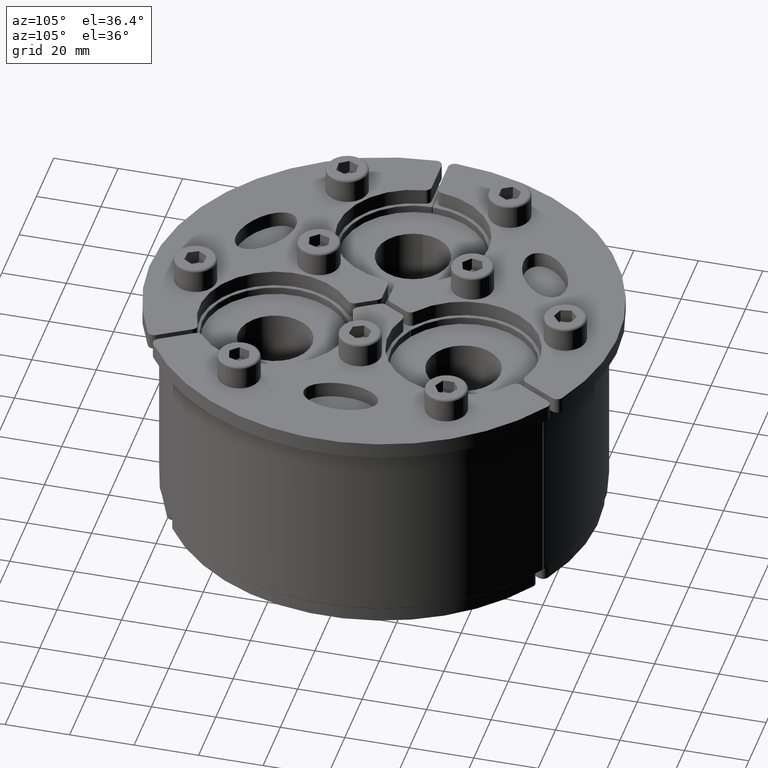
[diagram: clean part render]
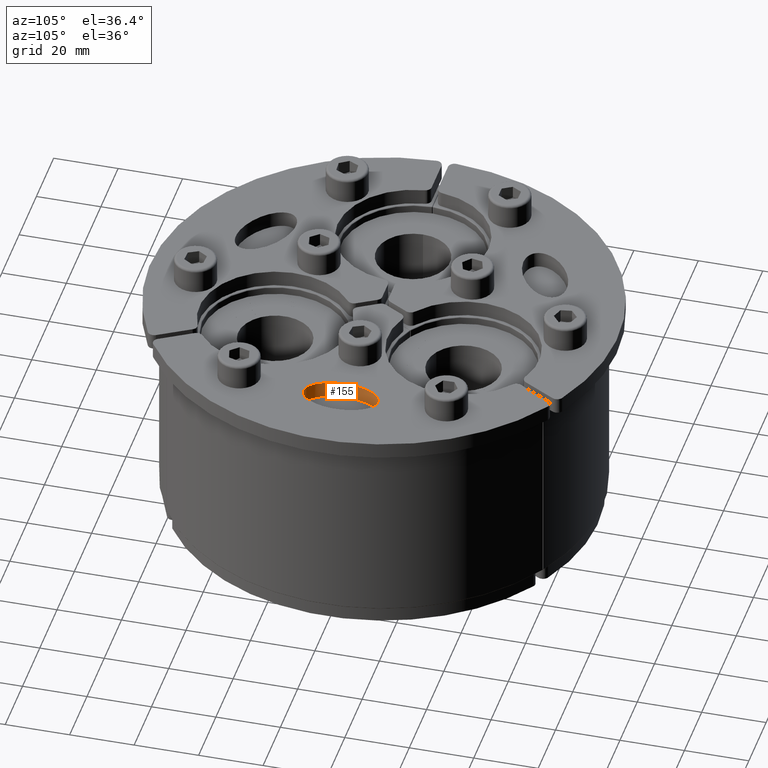
[diagram: same view with one face highlighted and labeled with its STEP entity id]
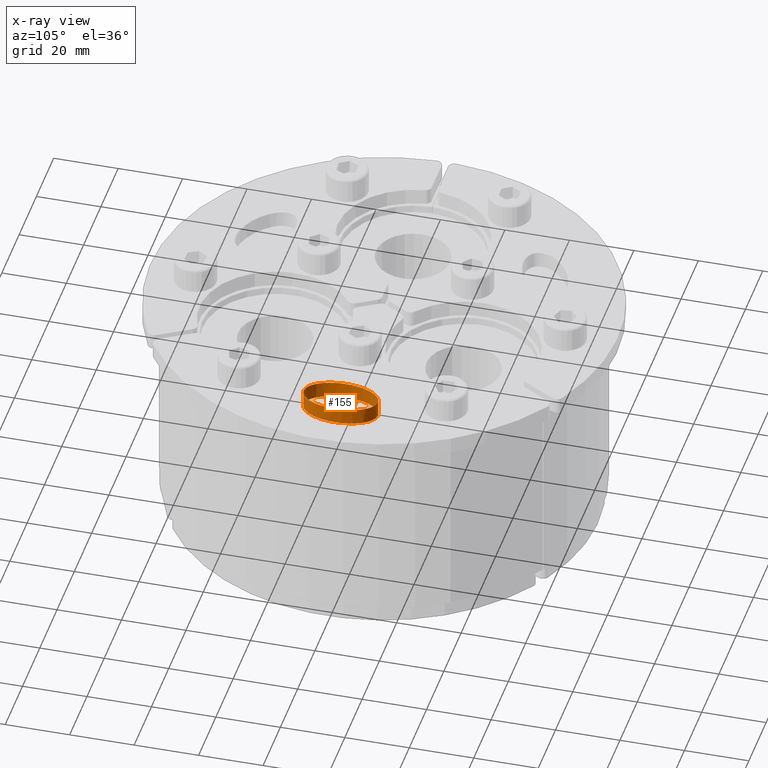
[diagram: x-ray of the same camera — body ghosted, the highlighted face saturated]
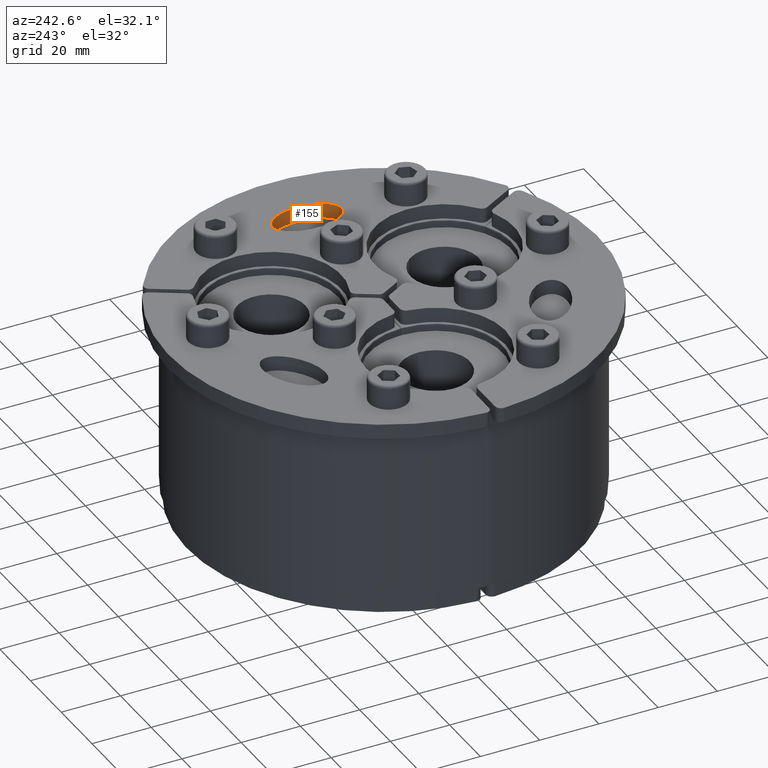
[diagram: same view with one face highlighted and labeled with its STEP entity id]
A machine part, auxiliary view. The second image highlights one B-rep face of the part: STEP entity #155.
The next image is the same camera in x-ray: the body ghosted, the highlighted face saturated — about 0% of this face is hidden behind the body in this view.
A second angle (auxiliary view) of the same face is appended — the face is thin or edge-on in the first view.
In plain terms, the highlighted face is a freeform B-spline surface patch.
Its self-contained STEP definition (entity closure, byte-faithful):
#107=CARTESIAN_POINT('',(-34.959292143520933,37.551270189222024,0.0));
#108=CARTESIAN_POINT('',(-34.959292143520933,37.551270189222024,5.0));
#109=CARTESIAN_POINT('',(-38.209292143520912,43.180435313820873,0.0));
#110=CARTESIAN_POINT('',(-38.209292143520912,43.180435313820873,5.0));
#111=CARTESIAN_POINT('',(-28.249999999999858,48.930435313820844,0.0));
#112=CARTESIAN_POINT('',(-28.249999999999858,48.930435313820844,5.0));
#113=CARTESIAN_POINT('',(-18.290707856478797,54.680435313820816,0.0));
#114=CARTESIAN_POINT('',(-18.290707856478797,54.680435313820816,5.0));
#115=CARTESIAN_POINT('',(-15.040707856478818,49.051270189221967,0.0));
#116=CARTESIAN_POINT('',(-15.040707856478818,49.051270189221967,5.0));
#117=CARTESIAN_POINT('',(-11.790707856478839,43.422105064623118,0.0));
#118=CARTESIAN_POINT('',(-11.790707856478839,43.422105064623118,5.0));
#119=CARTESIAN_POINT('',(-21.749999999999893,37.672105064623146,0.0));
#120=CARTESIAN_POINT('',(-21.749999999999893,37.672105064623146,5.0));
#121=CARTESIAN_POINT('',(-31.709292143520955,31.922105064623171,0.0));
#122=CARTESIAN_POINT('',(-31.709292143520955,31.922105064623171,5.0));
#123=CARTESIAN_POINT('',(-34.959292143520933,37.551270189222024,0.0));
#124=CARTESIAN_POINT('',(-34.959292143520933,37.551270189222024,5.0));
#132=(BOUNDED_SURFACE()B_SPLINE_SURFACE(1,2,((#107,#109,#111,#113,#115,#117,#119,#121,#123),(#108,#110,#112,#114,#116,#118,#120,#122,#124)),.UNSPECIFIED.,.F.,.T.,.U.)B_SPLINE_SURFACE_WITH_KNOTS((2,2),(3,2,2,2,3),(-0.434782608695652,0.0),(0.0,18.064157758141306,36.128315516282612,54.192473274423925,72.256631032565224),.UNSPECIFIED.)GEOMETRIC_REPRESENTATION_ITEM()RATIONAL_B_SPLINE_SURFACE(((1.0,0.707106781186548,1.0,0.707106781186548,1.0,0.707106781186548,1.0,0.707106781186548,1.0),(1.0,0.707106781186548,1.0,0.707106781186548,1.0,0.707106781186548,1.0,0.707106781186548,1.0)))REPRESENTATION_ITEM('')SURFACE());
#133=CARTESIAN_POINT('',(-34.959292143520933,37.551270189222031,0.0));
#134=VERTEX_POINT('',#133);
#135=CARTESIAN_POINT('',(-24.999999999999876,43.301270189221995,0.0));
#136=DIRECTION('',(0.0,0.0,1.0));
#137=DIRECTION('',(0.86602540378444,0.499999999999998,0.0));
#138=AXIS2_PLACEMENT_3D('',#135,#136,#137);
#139=ELLIPSE('',#138,11.499999999999996,6.499999999999989);
#140=EDGE_CURVE('',#134,#134,#139,.T.);
#141=ORIENTED_EDGE('',*,*,#140,.F.);
#142=EDGE_LOOP('',(#141));
#143=FACE_OUTER_BOUND('',#142,.T.);
#144=CARTESIAN_POINT('',(-34.959292143520933,37.551270189222031,5.0));
#145=VERTEX_POINT('',#144);
#146=CARTESIAN_POINT('',(-24.999999999999876,43.301270189221995,5.0));
#147=DIRECTION('',(0.0,0.0,-1.0));
#148=DIRECTION('',(0.86602540378444,0.499999999999998,0.0));
#149=AXIS2_PLACEMENT_3D('',#146,#147,#148);
#150=ELLIPSE('',#149,11.499999999999996,6.499999999999989);
#151=EDGE_CURVE('',#145,#145,#150,.T.);
#152=ORIENTED_EDGE('',*,*,#151,.F.);
#153=EDGE_LOOP('',(#152));
#154=FACE_BOUND('',#153,.T.);
#155=ADVANCED_FACE('',(#143,#154),#132,.F.);